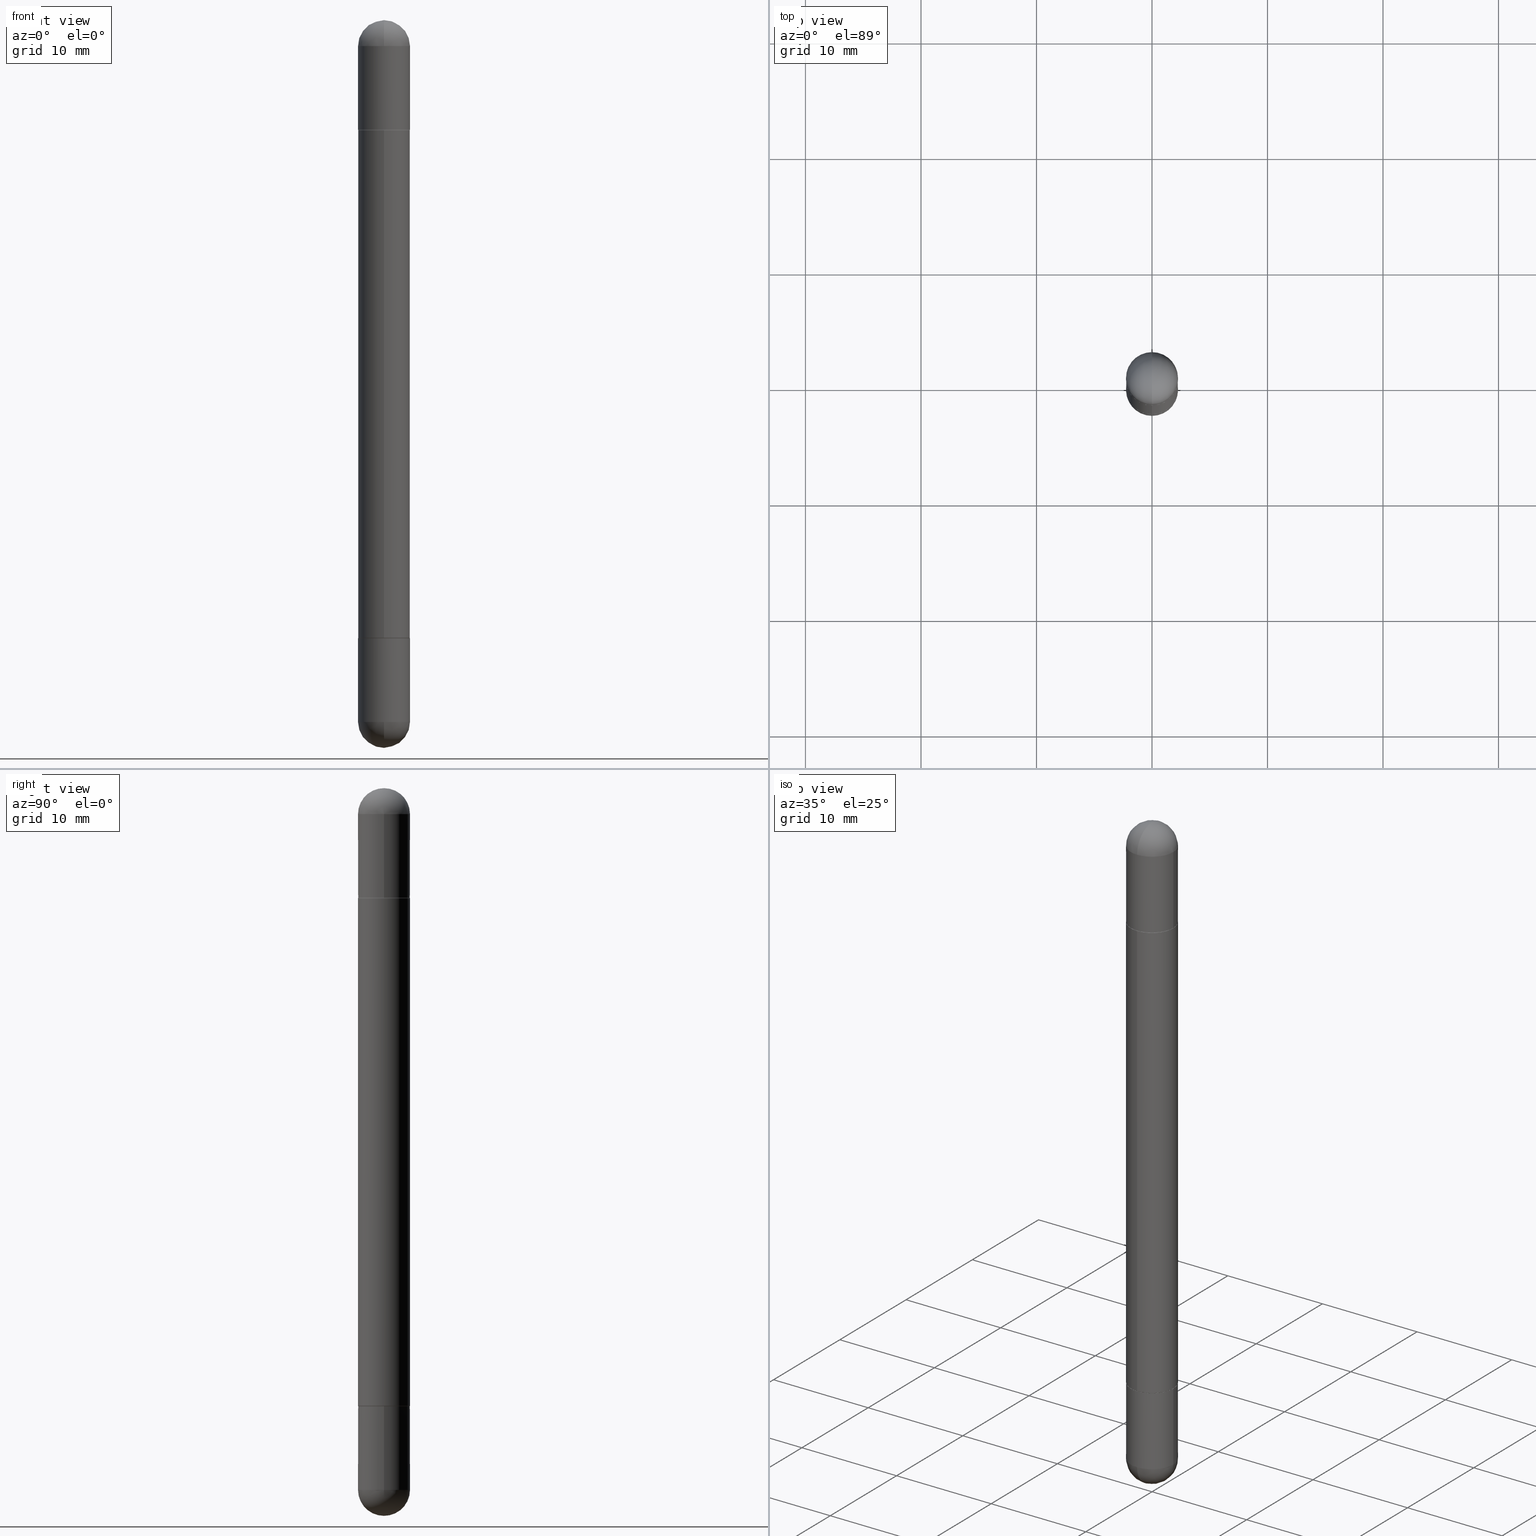
[diagram: canonical four-view strip — front | top / right | iso, engineering-drawing reading convention]
A machine part, canonical four-view strip (front | top / right | iso — engineering-drawing reading convention). The complete STEP part file that produces these views, byte-faithful:
ISO-10303-21;
HEADER;
FILE_DESCRIPTION (( 'STEP AP203' ),
    '1' );
FILE_NAME ('48975.STEP',
    '2024-03-01T12:48:08',
    ( '' ),
    ( '' ),
    'SwSTEP 2.0',
    'SolidWorks 2023',
    '' );
FILE_SCHEMA (( 'CONFIG_CONTROL_DESIGN' ));
ENDSEC;

DATA;
#1 = CARTESIAN_POINT ( 'NONE',  ( 6.044098736037242015E-16, 0.08759999999999262821, -0.3739999999999996105 ) ) ;
#2 = AXIS2_PLACEMENT_3D ( 'NONE', #61, #313, #561 ) ;
#3 = ORIENTED_EDGE ( 'NONE', *, *, #180, .T. ) ;
#4 = CC_DESIGN_APPROVAL ( #393, ( #735 ) ) ;
#5 = CIRCLE ( 'NONE', #542, 0.08759999999999999731 ) ;
#6 = FACE_OUTER_BOUND ( 'NONE', #363, .T. ) ;
#7 = FACE_OUTER_BOUND ( 'NONE', #533, .T. ) ;
#8 = CARTESIAN_POINT ( 'NONE',  ( 0.08859999999999999820, -8.471032024301239972E-15, -2.391700000000000159 ) ) ;
#9 = EDGE_CURVE ( 'NONE', #817, #777, #814, .T. ) ;
#10 = DIRECTION ( 'NONE',  ( 1.000000000000000000, -6.982962677686266711E-15, 0.000000000000000000 ) ) ;
#11 = CARTESIAN_POINT ( 'NONE',  ( 0.000000000000000000, 0.000000000000000000, 0.000000000000000000 ) ) ;
#12 = DIRECTION ( 'NONE',  ( -6.982962677686265922E-15, -1.000000000000000000, -3.854187349977787355E-15 ) ) ;
#13 = EDGE_LOOP ( 'NONE', ( #135, #98, #670, #120 ) ) ;
#14 = CARTESIAN_POINT ( 'NONE',  ( 6.186904932430546233E-16, 0.08859999999999264297, -0.3739999999999996105 ) ) ;
#15 = VECTOR ( 'NONE', #532, 39.37007874015748143 ) ;
#16 = AXIS2_PLACEMENT_3D ( 'NONE', #185, #619, #170 ) ;
#17 = ORIENTED_EDGE ( 'NONE', *, *, #86, .F. ) ;
#18 = CARTESIAN_POINT ( 'NONE',  ( 6.224354365258991183E-16, 0.08759999999999262821, -2.106300000000000505 ) ) ;
#19 = EDGE_CURVE ( 'NONE', #566, #238, #625, .T. ) ;
#20 = CARTESIAN_POINT ( 'NONE',  ( 5.150243839843650118E-29, -7.355033837522057757E-15, -0.3739999999999998881 ) ) ;
#21 = ORIENTED_EDGE ( 'NONE', *, *, #450, .F. ) ;
#22 = ORIENTED_EDGE ( 'NONE', *, *, #96, .T. ) ;
#23 = EDGE_LOOP ( 'NONE', ( #402, #354, #94, #331 ) ) ;
#24 = ORIENTED_EDGE ( 'NONE', *, *, #467, .T. ) ;
#25 = VERTEX_POINT ( 'NONE', #464 ) ;
#26 = ORIENTED_EDGE ( 'NONE', *, *, #508, .F. ) ;
#27 = AXIS2_PLACEMENT_3D ( 'NONE', #440, #696, #67 ) ;
#28 = PRODUCT_DEFINITION_FORMATION_WITH_SPECIFIED_SOURCE ( 'ANY', '', #419, .NOT_KNOWN. ) ;
#29 = DIRECTION ( 'NONE',  ( 6.982962677686265922E-15, 1.000000000000000000, -3.083349879982230831E-15 ) ) ;
#30 = ORIENTED_EDGE ( 'NONE', *, *, #209, .F. ) ;
#31 = AXIS2_PLACEMENT_3D ( 'NONE', #131, #377, #507 ) ;
#32 = DESIGN_CONTEXT ( 'detailed design', #421, 'design' ) ;
#33 = CARTESIAN_POINT ( 'NONE',  ( -0.08859999999999999820, 6.078401226025577455E-16, -2.480300000000000171 ) ) ;
#34 = VERTEX_POINT ( 'NONE', #708 ) ;
#35 = CARTESIAN_POINT ( 'NONE',  ( 5.150890946467754134E-29, -7.354107144005318601E-15, -0.3739999999999998881 ) ) ;
#36 = ORIENTED_EDGE ( 'NONE', *, *, #784, .F. ) ;
#37 = CARTESIAN_POINT ( 'NONE',  ( 6.078401226025891027E-16, 0.08859999999999287890, -2.105300000000001059 ) ) ;
#38 = CALENDAR_DATE ( 2024, 1, 3 ) ;
#39 = EDGE_LOOP ( 'NONE', ( #688, #531, #483, #206 ) ) ;
#40 = CARTESIAN_POINT ( 'NONE',  ( 5.848827743752992709E-29, -8.350575918111152281E-15, -2.391700000000000159 ) ) ;
#41 = PERSON_AND_ORGANIZATION ( #424, #460 ) ;
#42 = AXIS2_PLACEMENT_3D ( 'NONE', #380, #129, #634 ) ;
#43 = ORIENTED_EDGE ( 'NONE', *, *, #548, .F. ) ;
#44 = CIRCLE ( 'NONE', #774, 0.08859999999999999820 ) ;
#45 = CIRCLE ( 'NONE', #509, 0.08859999999999999820 ) ;
#46 = CARTESIAN_POINT ( 'NONE',  ( -6.186904932429535505E-16, -0.08860000000000764486, -0.3750000000000000555 ) ) ;
#47 = CARTESIAN_POINT ( 'NONE',  ( 6.009796246048376066E-16, 0.08759999999999262821, -0.3739999999999996105 ) ) ;
#48 = EDGE_LOOP ( 'NONE', ( #417, #529 ) ) ;
#49 = PERSON_AND_ORGANIZATION_ROLE ( 'creator' ) ;
#50 = FACE_OUTER_BOUND ( 'NONE', #754, .T. ) ;
#51 = DIRECTION ( 'NONE',  ( -6.982962677686265922E-15, -1.000000000000000000, -6.166699759964469551E-15 ) ) ;
#52 = VERTEX_POINT ( 'NONE', #8 ) ;
#53 = PERSON_AND_ORGANIZATION ( #424, #460 ) ;
#54 = LINE ( 'NONE', #189, #812 ) ;
#55 = CARTESIAN_POINT ( 'NONE',  ( 5.150243839843650118E-29, -7.355033837522057757E-15, -0.3739999999999998881 ) ) ;
#56 = DIRECTION ( 'NONE',  ( -2.445161581846673899E-29, 3.491921301581947653E-15, -1.000000000000000000 ) ) ;
#57 = DIRECTION ( 'NONE',  ( -2.445468806185136597E-29, 3.491481338843145583E-15, 1.000000000000000000 ) ) ;
#58 = DIRECTION ( 'NONE',  ( -6.982962677686265133E-15, -1.000000000000000000, -3.118547937972903315E-15 ) ) ;
#59 = APPROVAL_PERSON_ORGANIZATION ( #479, #258, #228 ) ;
#60 = DIRECTION ( 'NONE',  ( -1.000000000000000000, 6.982962677686265922E-15, 4.883557194083112340E-29 ) ) ;
#61 = CARTESIAN_POINT ( 'NONE',  ( 0.000000000000000000, 0.000000000000000000, -2.480300000000000171 ) ) ;
#62 = CARTESIAN_POINT ( 'NONE',  ( 0.08859999999999999820, -7.972797637248321554E-15, -2.106300000000000505 ) ) ;
#63 = VERTEX_POINT ( 'NONE', #214 ) ;
#64 = MECHANICAL_CONTEXT ( 'NONE', #226, 'mechanical' ) ;
#65 = DIRECTION ( 'NONE',  ( -2.445468806185136597E-29, 3.491481338843145583E-15, -1.000000000000000000 ) ) ;
#66 = ORIENTED_EDGE ( 'NONE', *, *, #383, .T. ) ;
#67 = DIRECTION ( 'NONE',  ( 6.982962677686265922E-15, 1.000000000000000000, -3.083349879982230831E-15 ) ) ;
#68 = DIRECTION ( 'NONE',  ( -2.445468806185136597E-29, 3.491481338843145583E-15, -1.000000000000000000 ) ) ;
#69 = AXIS2_PLACEMENT_3D ( 'NONE', #818, #766, #195 ) ;
#70 = ORIENTED_EDGE ( 'NONE', *, *, #567, .T. ) ;
#71 = CIRCLE ( 'NONE', #249, 0.08860000000000022025 ) ;
#72 = VECTOR ( 'NONE', #141, 39.37007874015748143 ) ;
#73 = EDGE_CURVE ( 'NONE', #476, #34, #610, .T. ) ;
#74 = DIRECTION ( 'NONE',  ( 2.445161581846673899E-29, -3.491921301581947653E-15, 1.000000000000000000 ) ) ;
#75 = VERTEX_POINT ( 'NONE', #157 ) ;
#76 = ORIENTED_EDGE ( 'NONE', *, *, #633, .T. ) ;
#77 = DIRECTION ( 'NONE',  ( -2.445161581846673899E-29, 3.491921301581947653E-15, -1.000000000000000000 ) ) ;
#78 = EDGE_CURVE ( 'NONE', #52, #229, #785, .T. ) ;
#79 = CC_DESIGN_DATE_AND_TIME_ASSIGNMENT ( #286, #793, ( #735 ) ) ;
#80 = ADVANCED_FACE ( 'NONE', ( #328 ), #390, .T. ) ;
#81 = ORIENTED_EDGE ( 'NONE', *, *, #19, .F. ) ;
#82 = DIRECTION ( 'NONE',  ( -2.445468806185136877E-29, 3.491481338843145188E-15, 1.000000000000000000 ) ) ;
#83 = PERSON_AND_ORGANIZATION ( #424, #460 ) ;
#84 = ORIENTED_EDGE ( 'NONE', *, *, #499, .T. ) ;
#85 = ADVANCED_FACE ( 'NONE', ( #271 ), #513, .F. ) ;
#86 = EDGE_CURVE ( 'NONE', #566, #807, #400, .T. ) ;
#87 = DIRECTION ( 'NONE',  ( -1.000000000000000000, 0.000000000000000000, 0.000000000000000000 ) ) ;
#88 = CIRCLE ( 'NONE', #722, 0.08859999999999999820 ) ;
#89 = CIRCLE ( 'NONE', #593, 0.08859999999999999820 ) ;
#90 = CIRCLE ( 'NONE', #349, 0.08860000000000022025 ) ;
#91 = DIRECTION ( 'NONE',  ( 1.000000000000000000, -6.982962677686269077E-15, 0.000000000000000000 ) ) ;
#92 = ORIENTED_EDGE ( 'NONE', *, *, #259, .F. ) ;
#93 = FACE_OUTER_BOUND ( 'NONE', #643, .T. ) ;
#94 = ORIENTED_EDGE ( 'NONE', *, *, #233, .T. ) ;
#95 = ORIENTED_EDGE ( 'NONE', *, *, #325, .F. ) ;
#96 = EDGE_CURVE ( 'NONE', #241, #340, #334, .T. ) ;
#97 = DIRECTION ( 'NONE',  ( 2.445161581846673899E-29, -3.491921301581947653E-15, 1.000000000000000000 ) ) ;
#98 = ORIENTED_EDGE ( 'NONE', *, *, #178, .T. ) ;
#99 = ADVANCED_FACE ( 'NONE', ( #519 ), #701, .T. ) ;
#100 = DIRECTION ( 'NONE',  ( 1.000000000000000000, -6.860497997771530774E-15, -4.840798879624142912E-29 ) ) ;
#101 = DIRECTION ( 'NONE',  ( -6.982962677686265133E-15, -1.000000000000000000, -3.118547937972903315E-15 ) ) ;
#102 = AXIS2_PLACEMENT_3D ( 'NONE', #815, #438, #435 ) ;
#103 = CC_DESIGN_APPROVAL ( #258, ( #28 ) ) ;
#104 = LINE ( 'NONE', #215, #295 ) ;
#105 = AXIS2_PLACEMENT_3D ( 'NONE', #564, #494, #134 ) ;
#106 = APPROVAL_DATE_TIME ( #669, #203 ) ;
#107 = ORIENTED_EDGE ( 'NONE', *, *, #456, .T. ) ;
#108 = APPROVAL_STATUS ( 'not_yet_approved' ) ;
#109 = ORIENTED_EDGE ( 'NONE', *, *, #567, .F. ) ;
#110 = CARTESIAN_POINT ( 'NONE',  ( -6.117075305652653668E-16, -0.08760000000000735254, -2.106300000000000061 ) ) ;
#111 = DIRECTION ( 'NONE',  ( -1.000000000000000000, 6.982962677686265922E-15, 4.876176775795935793E-29 ) ) ;
#112 = ORIENTED_EDGE ( 'NONE', *, *, #352, .T. ) ;
#113 = DIRECTION ( 'NONE',  ( -2.445161581846673899E-29, 3.491921301581948047E-15, -1.000000000000000000 ) ) ;
#114 = DIRECTION ( 'NONE',  ( 1.000000000000000000, -6.982962677686269077E-15, 0.000000000000000000 ) ) ;
#115 = EDGE_CURVE ( 'NONE', #798, #807, #583, .T. ) ;
#116 = CIRCLE ( 'NONE', #786, 0.08759999999999999731 ) ;
#117 = DIRECTION ( 'NONE',  ( 4.851104656542080513E-15, 0.7071067811867127739, -0.7071067811863820385 ) ) ;
#118 = DIRECTION ( 'NONE',  ( -6.982962677686265922E-15, -1.000000000000000000, 3.491921301581948047E-15 ) ) ;
#119 = MANIFOLD_SOLID_BREP ( 'Mirror4[1]', #136 ) ;
#120 = ORIENTED_EDGE ( 'NONE', *, *, #236, .F. ) ;
#121 = DATE_AND_TIME ( #427, #159 ) ;
#122 = AXIS2_PLACEMENT_3D ( 'NONE', #386, #60, #365 ) ;
#123 = ORIENTED_EDGE ( 'NONE', *, *, #692, .T. ) ;
#124 = ORIENTED_EDGE ( 'NONE', *, *, #399, .F. ) ;
#125 = DIRECTION ( 'NONE',  ( -2.445468806185136597E-29, 3.491481338843145583E-15, 1.000000000000000000 ) ) ;
#126 = DIRECTION ( 'NONE',  ( -2.445468806185136877E-29, 3.491481338843145188E-15, -1.000000000000000000 ) ) ;
#127 = CYLINDRICAL_SURFACE ( 'NONE', #382, 0.08859999999999999820 ) ;
#128 = DIRECTION ( 'NONE',  ( 6.982962677686265922E-15, 1.000000000000000000, 3.468768614980009882E-15 ) ) ;
#129 = DIRECTION ( 'NONE',  ( -2.445468806185136597E-29, 3.491481338843145583E-15, 1.000000000000000000 ) ) ;
#130 = LINE ( 'NONE', #690, #607 ) ;
#131 = CARTESIAN_POINT ( 'NONE',  ( 5.147798678261803388E-29, -7.351541916220477463E-15, -0.3749999999999996669 ) ) ;
#132 = DIRECTION ( 'NONE',  ( 1.000000000000000000, -6.982962677686269077E-15, 0.000000000000000000 ) ) ;
#133 = VECTOR ( 'NONE', #760, 39.37007874015748854 ) ;
#134 = DIRECTION ( 'NONE',  ( -6.982962677686265922E-15, -1.000000000000000000, 3.083349879982229648E-15 ) ) ;
#135 = ORIENTED_EDGE ( 'NONE', *, *, #115, .F. ) ;
#136 = CLOSED_SHELL ( 'NONE', ( #758, #408, #270, #511, #142, #260 ) ) ;
#137 = DIRECTION ( 'NONE',  ( 1.000000000000000000, -6.982962677686269077E-15, 0.000000000000000000 ) ) ;
#138 = DIRECTION ( 'NONE',  ( 1.000000000000000000, -6.982962677686269077E-15, 0.000000000000000000 ) ) ;
#139 = EDGE_CURVE ( 'NONE', #229, #230, #710, .T. ) ;
#140 = EDGE_LOOP ( 'NONE', ( #560, #285 ) ) ;
#141 = DIRECTION ( 'NONE',  ( -2.445468806185136877E-29, 3.491481338843145188E-15, -1.000000000000000000 ) ) ;
#142 = ADVANCED_FACE ( 'NONE', ( #485 ), #582, .T. ) ;
#143 = DIRECTION ( 'NONE',  ( 1.000000000000000000, -6.982962677686266711E-15, 0.000000000000000000 ) ) ;
#144 = CIRCLE ( 'NONE', #496, 0.08859999999999999820 ) ;
#145 = ORIENTED_EDGE ( 'NONE', *, *, #743, .F. ) ;
#146 =( NAMED_UNIT ( * ) PLANE_ANGLE_UNIT ( ) SI_UNIT ( $, .RADIAN. ) );
#147 = AXIS2_PLACEMENT_3D ( 'NONE', #164, #261, #569 ) ;
#148 = AXIS2_PLACEMENT_3D ( 'NONE', #658, #575, #715 ) ;
#149 = CIRCLE ( 'NONE', #207, 0.08859999999999999820 ) ;
#150 = PLANE ( 'NONE',  #294 ) ;
#151 = ORIENTED_EDGE ( 'NONE', *, *, #247, .F. ) ;
#152 = DIRECTION ( 'NONE',  ( 2.438088387897960049E-29, -3.491481338843145188E-15, -1.000000000000000000 ) ) ;
#153 = ADVANCED_FACE ( 'NONE', ( #169 ), #422, .F. ) ;
#154 = DIRECTION ( 'NONE',  ( -6.982962677686265133E-15, -1.000000000000000000, 3.118547937972903315E-15 ) ) ;
#155 = CARTESIAN_POINT ( 'NONE',  ( -6.186904932429535505E-16, -0.08860000000000764486, -0.3750000000000000555 ) ) ;
#156 = EDGE_LOOP ( 'NONE', ( #680, #573, #210, #213, #109 ) ) ;
#157 = CARTESIAN_POINT ( 'NONE',  ( 0.08859999999999999820, -7.972797637248321554E-15, -0.3739999999999998881 ) ) ;
#158 = AXIS2_PLACEMENT_3D ( 'NONE', #640, #74, #322 ) ;
#159 = LOCAL_TIME ( 7, 48, 8.000000000000000000, #796 ) ;
#160 = CIRCLE ( 'NONE', #556, 0.08859999999999999820 ) ;
#161 = CARTESIAN_POINT ( 'NONE',  ( 5.848827743752992709E-29, -8.350575918111152281E-15, -0.08859999999999998432 ) ) ;
#162 = VERTEX_POINT ( 'NONE', #343 ) ;
#163 = EDGE_CURVE ( 'NONE', #476, #493, #90, .T. ) ;
#164 = CARTESIAN_POINT ( 'NONE',  ( 0.000000000000000000, 0.000000000000000000, -2.480300000000000171 ) ) ;
#165 = EDGE_CURVE ( 'NONE', #34, #52, #570, .T. ) ;
#166 = CARTESIAN_POINT ( 'NONE',  ( 5.848827743752992709E-29, -8.350575918111152281E-15, -2.391700000000000159 ) ) ;
#167 = ORIENTED_EDGE ( 'NONE', *, *, #259, .T. ) ;
#168 = DIRECTION ( 'NONE',  ( 1.000000000000000000, -6.982962677686269077E-15, 0.000000000000000000 ) ) ;
#169 = FACE_OUTER_BOUND ( 'NONE', #291, .T. ) ;
#170 = DIRECTION ( 'NONE',  ( -6.982962677686265133E-15, -1.000000000000000000, 3.118547937972903315E-15 ) ) ;
#171 = COORDINATED_UNIVERSAL_TIME_OFFSET ( 5, 0, .BEHIND. ) ;
#172 = CIRCLE ( 'NONE', #221, 0.08860000000000024800 ) ;
#173 = ORIENTED_EDGE ( 'NONE', *, *, #782, .T. ) ;
#174 = CARTESIAN_POINT ( 'NONE',  ( 5.150890946467754134E-29, -7.354107144005318601E-15, -0.3739999999999998881 ) ) ;
#175 = ORIENTED_EDGE ( 'NONE', *, *, #78, .F. ) ;
#176 = CALENDAR_DATE ( 2024, 1, 3 ) ;
#177 = ADVANCED_FACE ( 'NONE', ( #684 ), #434, .T. ) ;
#178 = EDGE_CURVE ( 'NONE', #798, #665, #5, .T. ) ;
#179 = VERTEX_POINT ( 'NONE', #451 ) ;
#180 = EDGE_CURVE ( 'NONE', #25, #340, #198, .T. ) ;
#181 = DIRECTION ( 'NONE',  ( -2.445161581846673339E-29, 3.491921301581948047E-15, -1.000000000000000000 ) ) ;
#182 =( CONVERSION_BASED_UNIT ( 'INCH', #691 ) LENGTH_UNIT ( ) NAMED_UNIT ( #803 ) );
#183 = EDGE_LOOP ( 'NONE', ( #544, #112, #595, #592 ) ) ;
#184 = DIRECTION ( 'NONE',  ( -4.937700262165684002E-15, -0.7071067811867078889, -0.7071067811863869235 ) ) ;
#185 = CARTESIAN_POINT ( 'NONE',  ( 5.150243839843650118E-29, -7.355033837522057757E-15, -2.106300000000000505 ) ) ;
#186 = AXIS2_PLACEMENT_3D ( 'NONE', #650, #475, #781 ) ;
#187 = AXIS2_PLACEMENT_3D ( 'NONE', #396, #345, #652 ) ;
#188 = ORIENTED_EDGE ( 'NONE', *, *, #247, .T. ) ;
#189 = CARTESIAN_POINT ( 'NONE',  ( 6.078401226025584357E-16, 0.08860000000000010922, -2.480299999999999727 ) ) ;
#190 = DIRECTION ( 'NONE',  ( 0.000000000000000000, 0.000000000000000000, 1.000000000000000000 ) ) ;
#191 = FACE_OUTER_BOUND ( 'NONE', #586, .T. ) ;
#192 = CARTESIAN_POINT ( 'NONE',  ( 5.150243839843650118E-29, -7.355033837522057757E-15, -0.3739999999999998881 ) ) ;
#193 = SPHERICAL_SURFACE ( 'NONE', #27, 0.08860000000000022025 ) ;
#194 = CARTESIAN_POINT ( 'NONE',  ( 5.150243839843650118E-29, -7.355033837522057757E-15, -0.3739999999999998881 ) ) ;
#195 = DIRECTION ( 'NONE',  ( 6.860497997771530774E-15, 1.000000000000000000, 0.000000000000000000 ) ) ;
#196 = AXIS2_PLACEMENT_3D ( 'NONE', #296, #806, #243 ) ;
#197 = CALENDAR_DATE ( 2024, 1, 3 ) ;
#198 = CIRCLE ( 'NONE', #655, 0.08859999999999999820 ) ;
#199 = CARTESIAN_POINT ( 'NONE',  ( 0.000000000000000000, 0.000000000000000000, -2.480300000000000171 ) ) ;
#200 = ADVANCED_FACE ( 'NONE', ( #678 ), #412, .T. ) ;
#201 = ORIENTED_EDGE ( 'NONE', *, *, #467, .F. ) ;
#202 = ORIENTED_EDGE ( 'NONE', *, *, #490, .T. ) ;
#203 = APPROVAL ( #587, 'UNSPECIFIED' ) ;
#204 = CARTESIAN_POINT ( 'NONE',  ( 5.147798678261803388E-29, -7.351541916220477463E-15, -0.3749999999999996669 ) ) ;
#205 = CYLINDRICAL_SURFACE ( 'NONE', #2, 0.08860000000000010922 ) ;
#206 = ORIENTED_EDGE ( 'NONE', *, *, #450, .T. ) ;
#207 = AXIS2_PLACEMENT_3D ( 'NONE', #267, #703, #132 ) ;
#208 =( GEOMETRIC_REPRESENTATION_CONTEXT ( 3 ) GLOBAL_UNCERTAINTY_ASSIGNED_CONTEXT ( ( #337 ) ) GLOBAL_UNIT_ASSIGNED_CONTEXT ( ( #182, #146, #632 ) ) REPRESENTATION_CONTEXT ( 'NONE', 'WORKASPACE' ) );
#209 = EDGE_CURVE ( 'NONE', #269, #75, #45, .T. ) ;
#210 = ORIENTED_EDGE ( 'NONE', *, *, #165, .T. ) ;
#211 = ORIENTED_EDGE ( 'NONE', *, *, #490, .F. ) ;
#212 = DIRECTION ( 'NONE',  ( -6.982962677686265133E-15, -1.000000000000000000, 3.118547937972903315E-15 ) ) ;
#213 = ORIENTED_EDGE ( 'NONE', *, *, #78, .T. ) ;
#214 = CARTESIAN_POINT ( 'NONE',  ( 5.738164888728174729E-29, -9.128678347552484260E-15, 2.390366994456230070E-16 ) ) ;
#215 = CARTESIAN_POINT ( 'NONE',  ( -6.186904932430039390E-16, -0.08860000000000010922, -2.480300000000001059 ) ) ;
#216 = EDGE_CURVE ( 'NONE', #549, #682, #442, .T. ) ;
#217 = DIRECTION ( 'NONE',  ( -2.445161581846673899E-29, 3.491921301581947653E-15, -1.000000000000000000 ) ) ;
#218 = ORIENTED_EDGE ( 'NONE', *, *, #236, .T. ) ;
#219 = VERTEX_POINT ( 'NONE', #1 ) ;
#220 = DIRECTION ( 'NONE',  ( 1.000000000000000000, -6.982962677686269077E-15, 0.000000000000000000 ) ) ;
#221 = AXIS2_PLACEMENT_3D ( 'NONE', #776, #577, #12 ) ;
#222 = LOCAL_TIME ( 7, 48, 8.000000000000000000, #738 ) ;
#223 = CLOSED_SHELL ( 'NONE', ( #272, #808, #659, #85, #200 ) ) ;
#224 = EDGE_LOOP ( 'NONE', ( #585, #211, #657, #484 ) ) ;
#225 = ADVANCED_FACE ( 'NONE', ( #546 ), #698, .F. ) ;
#226 = APPLICATION_CONTEXT ( 'configuration controlled 3d designs of mechanical parts and assemblies' ) ;
#227 = ORIENTED_EDGE ( 'NONE', *, *, #646, .T. ) ;
#228 = APPROVAL_ROLE ( '' ) ;
#229 = VERTEX_POINT ( 'NONE', #62 ) ;
#230 = VERTEX_POINT ( 'NONE', #751 ) ;
#231 = CARTESIAN_POINT ( 'NONE',  ( -6.186904932429534519E-16, -0.08860000000000761711, -2.105300000000000171 ) ) ;
#232 = DIRECTION ( 'NONE',  ( 2.438088387897960049E-29, -3.491481338843145188E-15, 1.000000000000000000 ) ) ;
#233 = EDGE_CURVE ( 'NONE', #179, #682, #759, .T. ) ;
#234 = CARTESIAN_POINT ( 'NONE',  ( 5.517707965839106462E-29, -8.824758286251204155E-15, -0.08859999999999998432 ) ) ;
#235 = AXIS2_PLACEMENT_3D ( 'NONE', #194, #256, #500 ) ;
#236 = EDGE_CURVE ( 'NONE', #807, #336, #462, .T. ) ;
#237 = CC_DESIGN_SECURITY_CLASSIFICATION ( #580, ( #28 ) ) ;
#238 = VERTEX_POINT ( 'NONE', #46 ) ;
#239 = ORIENTED_EDGE ( 'NONE', *, *, #548, .T. ) ;
#240 = CARTESIAN_POINT ( 'NONE',  ( 5.150890946467754134E-29, -7.354107144005318601E-15, -0.3739999999999998881 ) ) ;
#241 = VERTEX_POINT ( 'NONE', #802 ) ;
#242 = LINE ( 'NONE', #110, #709 ) ;
#243 = DIRECTION ( 'NONE',  ( 1.000000000000000000, -6.982962677686269077E-15, 0.000000000000000000 ) ) ;
#244 = EDGE_LOOP ( 'NONE', ( #699, #647, #21, #525, #66 ) ) ;
#245 = DIRECTION ( 'NONE',  ( 1.000000000000000000, -6.982962677686266711E-15, 4.876176775795935232E-29 ) ) ;
#246 = CARTESIAN_POINT ( 'NONE',  ( 0.000000000000000000, 0.000000000000000000, -1.240150000000000086 ) ) ;
#247 = EDGE_CURVE ( 'NONE', #493, #289, #160, .T. ) ;
#248 = CIRCLE ( 'NONE', #196, 0.08859999999999999820 ) ;
#249 = AXIS2_PLACEMENT_3D ( 'NONE', #268, #649, #449 ) ;
#250 = VECTOR ( 'NONE', #82, 39.37007874015748143 ) ;
#251 = AXIS2_PLACEMENT_3D ( 'NONE', #454, #565, #631 ) ;
#252 = DIRECTION ( 'NONE',  ( 6.982962677686265922E-15, 1.000000000000000000, 3.468768614980009882E-15 ) ) ;
#253 = CARTESIAN_POINT ( 'NONE',  ( -0.08859999999999999820, -7.222800667174788168E-15, -2.391700000000000159 ) ) ;
#254 = CARTESIAN_POINT ( 'NONE',  ( 6.044098736037242015E-16, 0.08759999999999262821, -0.3739999999999996105 ) ) ;
#255 = CYLINDRICAL_SURFACE ( 'NONE', #413, 0.08859999999999999820 ) ;
#256 = DIRECTION ( 'NONE',  ( -2.445161581846673339E-29, 3.491921301581948047E-15, -1.000000000000000000 ) ) ;
#257 = ORIENTED_EDGE ( 'NONE', *, *, #502, .T. ) ;
#258 = APPROVAL ( #679, 'UNSPECIFIED' ) ;
#259 = EDGE_CURVE ( 'NONE', #63, #789, #474, .T. ) ;
#260 = ADVANCED_FACE ( 'NONE', ( #813 ), #614, .T. ) ;
#261 = DIRECTION ( 'NONE',  ( -2.445161581846673899E-29, 3.491921301581947653E-15, -1.000000000000000000 ) ) ;
#262 = CONICAL_SURFACE ( 'NONE', #16, 0.08759999999999999731, 0.7853981633976787613 ) ;
#263 = AXIS2_PLACEMENT_3D ( 'NONE', #166, #787, #410 ) ;
#264 = EDGE_LOOP ( 'NONE', ( #461, #292, #411, #737 ) ) ;
#265 = DIRECTION ( 'NONE',  ( -2.445161581846673899E-29, 3.491921301581947653E-15, 1.000000000000000000 ) ) ;
#266 = CARTESIAN_POINT ( 'NONE',  ( 5.150243839843650118E-29, -7.355033837522057757E-15, -0.3739999999999998881 ) ) ;
#267 = CARTESIAN_POINT ( 'NONE',  ( 5.848827743752992709E-29, -8.350575918111152281E-15, -0.08859999999999998432 ) ) ;
#268 = CARTESIAN_POINT ( 'NONE',  ( 5.517707965839106462E-29, -8.824758286251204155E-15, -0.08859999999999998432 ) ) ;
#269 = VERTEX_POINT ( 'NONE', #559 ) ;
#270 = ADVANCED_FACE ( 'NONE', ( #551 ), #810, .F. ) ;
#271 = FACE_OUTER_BOUND ( 'NONE', #597, .T. ) ;
#272 = ADVANCED_FACE ( 'NONE', ( #305 ), #127, .T. ) ;
#273 = CARTESIAN_POINT ( 'NONE',  ( -6.186904932429630168E-16, -0.08860000000000445297, -1.240150000000000086 ) ) ;
#274 = CARTESIAN_POINT ( 'NONE',  ( 5.517707965839106462E-29, -8.824758286251204155E-15, -2.391700000000000159 ) ) ;
#275 = ORIENTED_EDGE ( 'NONE', *, *, #86, .T. ) ;
#276 = AXIS2_PLACEMENT_3D ( 'NONE', #622, #809, #245 ) ;
#277 = DIRECTION ( 'NONE',  ( 6.860497997771530774E-15, 1.000000000000000000, 0.000000000000000000 ) ) ;
#278 = DIRECTION ( 'NONE',  ( -6.982962677686265922E-15, -1.000000000000000000, -3.854187349977787355E-15 ) ) ;
#279 = VECTOR ( 'NONE', #184, 39.37007874015748854 ) ;
#280 = ORIENTED_EDGE ( 'NONE', *, *, #633, .F. ) ;
#281 = DIRECTION ( 'NONE',  ( 1.000000000000000000, -6.982962677686269077E-15, 0.000000000000000000 ) ) ;
#282 = ORIENTED_EDGE ( 'NONE', *, *, #139, .F. ) ;
#283 = CIRCLE ( 'NONE', #187, 0.08859999999999999820 ) ;
#284 = CIRCLE ( 'NONE', #639, 0.08859999999999999820 ) ;
#285 = ORIENTED_EDGE ( 'NONE', *, *, #178, .F. ) ;
#286 = DATE_AND_TIME ( #176, #431 ) ;
#287 = ORIENTED_EDGE ( 'NONE', *, *, #165, .F. ) ;
#288 = DIRECTION ( 'NONE',  ( 2.445468806185136597E-29, -3.491481338843145583E-15, 1.000000000000000000 ) ) ;
#289 = VERTEX_POINT ( 'NONE', #253 ) ;
#290 = DATE_AND_TIME ( #38, #222 ) ;
#291 = EDGE_LOOP ( 'NONE', ( #539, #455 ) ) ;
#292 = ORIENTED_EDGE ( 'NONE', *, *, #637, .F. ) ;
#293 = APPROVAL_DATE_TIME ( #290, #393 ) ;
#294 = AXIS2_PLACEMENT_3D ( 'NONE', #514, #152, #314 ) ;
#295 = VECTOR ( 'NONE', #780, 39.37007874015748143 ) ;
#296 = CARTESIAN_POINT ( 'NONE',  ( 5.848827743752992709E-29, -8.350575918111152281E-15, -0.08859999999999998432 ) ) ;
#297 = CLOSED_SHELL ( 'NONE', ( #99, #627, #80, #225, #706, #409, #805, #553 ) ) ;
#298 = ORIENTED_EDGE ( 'NONE', *, *, #350, .F. ) ;
#299 = DIRECTION ( 'NONE',  ( 2.445468806185136597E-29, -3.491481338843145583E-15, 1.000000000000000000 ) ) ;
#300 = VERTEX_POINT ( 'NONE', #501 ) ;
#301 = DIRECTION ( 'NONE',  ( -2.445161581846673899E-29, 3.491921301581948047E-15, -1.000000000000000000 ) ) ;
#302 = CARTESIAN_POINT ( 'NONE',  ( 6.078401226026096131E-16, 0.08859999999999577935, -1.240150000000000086 ) ) ;
#303 = EDGE_CURVE ( 'NONE', #420, #549, #414, .T. ) ;
#304 = ADVANCED_FACE ( 'NONE', ( #7 ), #150, .F. ) ;
#305 = FACE_OUTER_BOUND ( 'NONE', #338, .T. ) ;
#306 = CIRCLE ( 'NONE', #398, 0.08860000000000024800 ) ;
#307 = DIRECTION ( 'NONE',  ( -1.000000000000000000, 0.000000000000000000, 0.000000000000000000 ) ) ;
#308 = AXIS2_PLACEMENT_3D ( 'NONE', #20, #217, #470 ) ;
#309 = AXIS2_PLACEMENT_3D ( 'NONE', #246, #190, #436 ) ;
#310 = DIRECTION ( 'NONE',  ( 1.000000000000000000, -6.982962677686269077E-15, 0.000000000000000000 ) ) ;
#311 = CARTESIAN_POINT ( 'NONE',  ( 5.848827743752992709E-29, -8.350575918111152281E-15, -2.391700000000000159 ) ) ;
#312 = DIRECTION ( 'NONE',  ( 6.982962677686265922E-15, 1.000000000000000000, 3.468768614980009882E-15 ) ) ;
#313 = DIRECTION ( 'NONE',  ( -2.445161581846673899E-29, 3.491921301581947653E-15, -1.000000000000000000 ) ) ;
#314 = DIRECTION ( 'NONE',  ( -1.000000000000000000, 6.982962677686265922E-15, -4.876176775795935793E-29 ) ) ;
#315 = SECURITY_CLASSIFICATION_LEVEL ( 'unclassified' ) ;
#316 = CARTESIAN_POINT ( 'NONE',  ( 0.000000000000000000, 0.000000000000000000, 0.000000000000000000 ) ) ;
#317 = ORIENTED_EDGE ( 'NONE', *, *, #399, .T. ) ;
#318 = CARTESIAN_POINT ( 'NONE',  ( -0.08859999999999999820, -7.244501408455678386E-15, -0.08859999999999998432 ) ) ;
#319 = CC_DESIGN_PERSON_AND_ORGANIZATION_ASSIGNMENT ( #621, #384, ( #580 ) ) ;
#320 = CIRCLE ( 'NONE', #378, 0.08860000000000010922 ) ;
#321 = AXIS2_PLACEMENT_3D ( 'NONE', #316, #125, #689 ) ;
#322 = DIRECTION ( 'NONE',  ( -6.982962677686265922E-15, -1.000000000000000000, -3.854187349977787355E-15 ) ) ;
#323 = VERTEX_POINT ( 'NONE', #341 ) ;
#324 = ORIENTED_EDGE ( 'NONE', *, *, #163, .T. ) ;
#325 = EDGE_CURVE ( 'NONE', #617, #25, #407, .T. ) ;
#326 = CARTESIAN_POINT ( 'NONE',  ( 5.150890946467754134E-29, -7.354107144005318601E-15, -0.3739999999999998881 ) ) ;
#327 = ORIENTED_EDGE ( 'NONE', *, *, #73, .T. ) ;
#328 = FACE_OUTER_BOUND ( 'NONE', #183, .T. ) ;
#329 = DIRECTION ( 'NONE',  ( 2.445468806185136597E-29, -3.491481338843145583E-15, 1.000000000000000000 ) ) ;
#330 = FACE_OUTER_BOUND ( 'NONE', #521, .T. ) ;
#331 = ORIENTED_EDGE ( 'NONE', *, *, #216, .F. ) ;
#332 = CIRCLE ( 'NONE', #42, 0.08859999999999999820 ) ;
#333 = CARTESIAN_POINT ( 'NONE',  ( -6.117075305652653668E-16, -0.08760000000000735254, -0.3740000000000001656 ) ) ;
#334 = LINE ( 'NONE', #644, #72 ) ;
#335 = CLOSED_SHELL ( 'NONE', ( #589, #463, #366, #153, #600 ) ) ;
#336 = VERTEX_POINT ( 'NONE', #231 ) ;
#337 = UNCERTAINTY_MEASURE_WITH_UNIT (LENGTH_MEASURE( 1.000000000000000082E-05 ), #182, 'distance_accuracy_value', 'NONE');
#338 = EDGE_LOOP ( 'NONE', ( #368, #227, #465, #26, #654 ) ) ;
#339 = EDGE_CURVE ( 'NONE', #665, #336, #242, .T. ) ;
#340 = VERTEX_POINT ( 'NONE', #662 ) ;
#341 = CARTESIAN_POINT ( 'NONE',  ( 5.738164888728174729E-29, -9.128678347552484260E-15, 2.390366994456230070E-16 ) ) ;
#342 = CARTESIAN_POINT ( 'NONE',  ( 3.032367135727152857E-29, -4.330506202156853128E-15, -1.240150000000000086 ) ) ;
#343 = CARTESIAN_POINT ( 'NONE',  ( -6.078401226025015392E-16, -0.08860000000000868570, -0.08860000000000028963 ) ) ;
#344 = CC_DESIGN_PERSON_AND_ORGANIZATION_ASSIGNMENT ( #53, #375, ( #28 ) ) ;
#345 = DIRECTION ( 'NONE',  ( 2.445468806185136597E-29, -3.491481338843145583E-15, 1.000000000000000000 ) ) ;
#346 = ORIENTED_EDGE ( 'NONE', *, *, #325, .T. ) ;
#347 = AXIS2_PLACEMENT_3D ( 'NONE', #702, #373, #312 ) ;
#348 = CIRCLE ( 'NONE', #609, 0.08859999999999999820 ) ;
#349 = AXIS2_PLACEMENT_3D ( 'NONE', #418, #355, #602 ) ;
#350 = EDGE_CURVE ( 'NONE', #777, #817, #320, .T. ) ;
#351 = VERTEX_POINT ( 'NONE', #681 ) ;
#352 = EDGE_CURVE ( 'NONE', #219, #566, #437, .T. ) ;
#353 = EDGE_LOOP ( 'NONE', ( #202, #257 ) ) ;
#354 = ORIENTED_EDGE ( 'NONE', *, *, #391, .T. ) ;
#355 = DIRECTION ( 'NONE',  ( 1.000000000000000000, -6.982962677686265922E-15, 4.883557194083112340E-29 ) ) ;
#356 = EDGE_LOOP ( 'NONE', ( #17, #489, #24, #239 ) ) ;
#357 = CARTESIAN_POINT ( 'NONE',  ( 5.738164888728174729E-29, -9.128678347552484260E-15, -2.480300000000000171 ) ) ;
#358 = CARTESIAN_POINT ( 'NONE',  ( -6.117075305652653668E-16, -0.08760000000000735254, -0.3740000000000001656 ) ) ;
#359 = CC_DESIGN_APPROVAL ( #203, ( #580 ) ) ;
#360 = DIRECTION ( 'NONE',  ( -2.445468806185136877E-29, 3.491481338843145188E-15, 1.000000000000000000 ) ) ;
#361 = AXIS2_PLACEMENT_3D ( 'NONE', #664, #232, #111 ) ;
#362 = CARTESIAN_POINT ( 'NONE',  ( 6.078401226026106978E-16, 0.08859999999999286502, -0.3749999999999993339 ) ) ;
#363 = EDGE_LOOP ( 'NONE', ( #95, #601, #517, #22, #799 ) ) ;
#364 = APPROVAL_DATE_TIME ( #121, #258 ) ;
#365 = DIRECTION ( 'NONE',  ( -6.982962677686265133E-15, -1.000000000000000000, 0.000000000000000000 ) ) ;
#366 = ADVANCED_FACE ( 'NONE', ( #367 ), #611, .T. ) ;
#367 = FACE_OUTER_BOUND ( 'NONE', #395, .T. ) ;
#368 = ORIENTED_EDGE ( 'NONE', *, *, #782, .F. ) ;
#369 = FACE_OUTER_BOUND ( 'NONE', #48, .T. ) ;
#370 = DIRECTION ( 'NONE',  ( -2.445468806185136597E-29, 3.491481338843145583E-15, -1.000000000000000000 ) ) ;
#371 = CC_DESIGN_PERSON_AND_ORGANIZATION_ASSIGNMENT ( #530, #538, ( #735 ) ) ;
#372 = CARTESIAN_POINT ( 'NONE',  ( 5.848827743752992709E-29, -8.350575918111152281E-15, -0.08859999999999998432 ) ) ;
#373 = DIRECTION ( 'NONE',  ( 1.000000000000000000, -6.982962677686265922E-15, -4.883557194083112901E-29 ) ) ;
#374 = FACE_OUTER_BOUND ( 'NONE', #392, .T. ) ;
#375 = PERSON_AND_ORGANIZATION_ROLE ( 'design_supplier' ) ;
#376 = SPHERICAL_SURFACE ( 'NONE', #767, 0.08860000000000022025 ) ;
#377 = DIRECTION ( 'NONE',  ( 2.445161581846673899E-29, -3.491921301581947653E-15, 1.000000000000000000 ) ) ;
#378 = AXIS2_PLACEMENT_3D ( 'NONE', #342, #666, #307 ) ;
#379 = MANIFOLD_SOLID_BREP ( 'Body-Move/Copy2[1]', #686 ) ;
#380 = CARTESIAN_POINT ( 'NONE',  ( 5.150890946467754134E-29, -7.354107144005318601E-15, -2.106300000000000505 ) ) ;
#381 = VECTOR ( 'NONE', #752, 39.37007874015748854 ) ;
#382 = AXIS2_PLACEMENT_3D ( 'NONE', #762, #370, #554 ) ;
#383 = EDGE_CURVE ( 'NONE', #75, #269, #88, .T. ) ;
#384 = PERSON_AND_ORGANIZATION_ROLE ( 'classification_officer' ) ;
#385 = CYLINDRICAL_SURFACE ( 'NONE', #276, 0.08859999999999999820 ) ;
#386 = CARTESIAN_POINT ( 'NONE',  ( 5.517707965839106462E-29, -8.824758286251204155E-15, -0.08859999999999998432 ) ) ;
#387 = CARTESIAN_POINT ( 'NONE',  ( 6.078401226025584357E-16, 0.08860000000000010922, -2.480299999999999727 ) ) ;
#388 = VECTOR ( 'NONE', #301, 39.37007874015748143 ) ;
#389 = DATE_AND_TIME ( #197, #768 ) ;
#390 = CONICAL_SURFACE ( 'NONE', #401, 0.08759999999999999731, 0.7853981633976787613 ) ;
#391 = EDGE_CURVE ( 'NONE', #420, #179, #630, .T. ) ;
#392 = EDGE_LOOP ( 'NONE', ( #124, #346, #3, #397, #526 ) ) ;
#393 = APPROVAL ( #108, 'UNSPECIFIED' ) ;
#394 = DIRECTION ( 'NONE',  ( -2.445468806185136877E-29, 3.491481338843145188E-15, -1.000000000000000000 ) ) ;
#395 = EDGE_LOOP ( 'NONE', ( #280, #167, #84, #317 ) ) ;
#396 = CARTESIAN_POINT ( 'NONE',  ( 5.848827743752992709E-29, -8.350575918111152281E-15, -0.08859999999999998432 ) ) ;
#397 = ORIENTED_EDGE ( 'NONE', *, *, #96, .F. ) ;
#398 = AXIS2_PLACEMENT_3D ( 'NONE', #505, #761, #441 ) ;
#399 = EDGE_CURVE ( 'NONE', #617, #162, #248, .T. ) ;
#400 = LINE ( 'NONE', #387, #518 ) ;
#401 = AXIS2_PLACEMENT_3D ( 'NONE', #266, #77, #469 ) ;
#402 = ORIENTED_EDGE ( 'NONE', *, *, #303, .F. ) ;
#403 = CC_DESIGN_PERSON_AND_ORGANIZATION_ASSIGNMENT ( #613, #49, ( #28 ) ) ;
#404 = DIRECTION ( 'NONE',  ( -4.937700262165684002E-15, -0.7071067811867078889, 0.7071067811863869235 ) ) ;
#405 = ORIENTED_EDGE ( 'NONE', *, *, #763, .T. ) ;
#406 = DIRECTION ( 'NONE',  ( -6.982962677686265133E-15, -1.000000000000000000, -3.118547937972903315E-15 ) ) ;
#407 = LINE ( 'NONE', #33, #15 ) ;
#408 = ADVANCED_FACE ( 'NONE', ( #616 ), #668, .T. ) ;
#409 = ADVANCED_FACE ( 'NONE', ( #687 ), #557, .T. ) ;
#410 = DIRECTION ( 'NONE',  ( 1.000000000000000000, -6.982962677686269077E-15, 0.000000000000000000 ) ) ;
#411 = ORIENTED_EDGE ( 'NONE', *, *, #743, .T. ) ;
#412 = CYLINDRICAL_SURFACE ( 'NONE', #675, 0.08859999999999999820 ) ;
#413 = AXIS2_PLACEMENT_3D ( 'NONE', #771, #68, #10 ) ;
#414 = CIRCLE ( 'NONE', #591, 0.08759999999999999731 ) ;
#415 = ORIENTED_EDGE ( 'NONE', *, *, #615, .T. ) ;
#416 = DIRECTION ( 'NONE',  ( -2.445468806185136597E-29, 3.491481338843145583E-15, -1.000000000000000000 ) ) ;
#417 = ORIENTED_EDGE ( 'NONE', *, *, #428, .T. ) ;
#418 = CARTESIAN_POINT ( 'NONE',  ( 5.517707965839106462E-29, -8.824758286251204155E-15, -2.391700000000000159 ) ) ;
#419 = PRODUCT ( '48975', '48975', '', ( #64 ) ) ;
#420 = VERTEX_POINT ( 'NONE', #254 ) ;
#421 = APPLICATION_CONTEXT ( 'configuration controlled 3d designs of mechanical parts and assemblies' ) ;
#422 = PLANE ( 'NONE',  #361 ) ;
#423 = LINE ( 'NONE', #764, #388 ) ;
#424 = PERSON ( 'UNSPECIFIED', 'UNSPECIFIED', 'UNSPECIFIED', ('UNSPECIFIED'), ('UNSPECIFIED'), ('UNSPECIFIED') ) ;
#425 = ADVANCED_FACE ( 'NONE', ( #753 ), #193, .T. ) ;
#426 = EDGE_LOOP ( 'NONE', ( #749, #478 ) ) ;
#427 = CALENDAR_DATE ( 2024, 1, 3 ) ;
#428 = EDGE_CURVE ( 'NONE', #549, #420, #683, .T. ) ;
#429 = DIRECTION ( 'NONE',  ( -2.445468806185136597E-29, 3.491481338843145583E-15, 1.000000000000000000 ) ) ;
#430 = FACE_OUTER_BOUND ( 'NONE', #39, .T. ) ;
#431 = LOCAL_TIME ( 7, 48, 8.000000000000000000, #171 ) ;
#432 = AXIS2_PLACEMENT_3D ( 'NONE', #522, #578, #87 ) ;
#433 = EDGE_LOOP ( 'NONE', ( #677, #534, #720, #740 ) ) ;
#434 = CYLINDRICAL_SURFACE ( 'NONE', #321, 0.08859999999999999820 ) ;
#435 = DIRECTION ( 'NONE',  ( -6.982962677686265133E-15, -1.000000000000000000, -3.118547937972903315E-15 ) ) ;
#436 = DIRECTION ( 'NONE',  ( -1.000000000000000000, 0.000000000000000000, 0.000000000000000000 ) ) ;
#437 = LINE ( 'NONE', #693, #481 ) ;
#438 = DIRECTION ( 'NONE',  ( 2.445161581846673899E-29, -3.491921301581947653E-15, 1.000000000000000000 ) ) ;
#439 = EDGE_CURVE ( 'NONE', #289, #230, #598, .T. ) ;
#440 = CARTESIAN_POINT ( 'NONE',  ( 5.517707965839106462E-29, -8.824758286251204155E-15, -2.391700000000000159 ) ) ;
#441 = DIRECTION ( 'NONE',  ( -6.982962677686265922E-15, -1.000000000000000000, 3.083349879982229648E-15 ) ) ;
#442 = LINE ( 'NONE', #358, #279 ) ;
#443 =( LENGTH_UNIT ( ) NAMED_UNIT ( * ) SI_UNIT ( $, .METRE. ) );
#444 = DIRECTION ( 'NONE',  ( 1.000000000000000000, 0.000000000000000000, 0.000000000000000000 ) ) ;
#445 = AXIS2_PLACEMENT_3D ( 'NONE', #199, #65, #143 ) ;
#446 = CARTESIAN_POINT ( 'NONE',  ( 5.150243839843650118E-29, -7.355033837522057757E-15, -2.106300000000000505 ) ) ;
#447 = CIRCLE ( 'NONE', #263, 0.08859999999999999820 ) ;
#448 = AXIS2_PLACEMENT_3D ( 'NONE', #734, #545, #220 ) ;
#449 = DIRECTION ( 'NONE',  ( -6.982962677686265133E-15, -1.000000000000000000, 0.000000000000000000 ) ) ;
#450 = EDGE_CURVE ( 'NONE', #605, #718, #144, .T. ) ;
#451 = CARTESIAN_POINT ( 'NONE',  ( 6.078401226026106978E-16, 0.08859999999999286502, -0.3749999999999993339 ) ) ;
#452 = APPLICATION_PROTOCOL_DEFINITION ( 'international standard', 'config_control_design', 1994, #226 ) ;
#453 = CARTESIAN_POINT ( 'NONE',  ( 0.08859999999999999820, -6.186904932430032487E-16, 4.320292623355198765E-30 ) ) ;
#454 = CARTESIAN_POINT ( 'NONE',  ( 5.848827743752992709E-29, -8.350575918111152281E-15, -2.391700000000000159 ) ) ;
#455 = ORIENTED_EDGE ( 'NONE', *, *, #180, .F. ) ;
#456 = EDGE_CURVE ( 'NONE', #179, #817, #54, .T. ) ;
#457 = DIRECTION ( 'NONE',  ( -2.445161581846673899E-29, 3.491921301581948047E-15, -1.000000000000000000 ) ) ;
#458 = CIRCLE ( 'NONE', #102, 0.08759999999999999731 ) ;
#459 = DIRECTION ( 'NONE',  ( -1.000000000000000000, 6.982962677686265922E-15, -4.883557194083112901E-29 ) ) ;
#460 = ORGANIZATION ( 'UNSPECIFIED', 'UNSPECIFIED', '' ) ;
#461 = ORIENTED_EDGE ( 'NONE', *, *, #456, .F. ) ;
#462 = CIRCLE ( 'NONE', #105, 0.08860000000000024800 ) ;
#463 = ADVANCED_FACE ( 'NONE', ( #50 ), #376, .T. ) ;
#464 = CARTESIAN_POINT ( 'NONE',  ( -0.08859999999999999820, -7.244501408455678386E-15, -0.3739999999999998881 ) ) ;
#465 = ORIENTED_EDGE ( 'NONE', *, *, #209, .T. ) ;
#466 = DIRECTION ( 'NONE',  ( 2.438088387897960049E-29, -3.491481338843145188E-15, 1.000000000000000000 ) ) ;
#467 = EDGE_CURVE ( 'NONE', #238, #336, #423, .T. ) ;
#468 = ORIENTED_EDGE ( 'NONE', *, *, #139, .T. ) ;
#469 = DIRECTION ( 'NONE',  ( -6.982962677686265133E-15, -1.000000000000000000, -3.118547937972903315E-15 ) ) ;
#470 = DIRECTION ( 'NONE',  ( -6.982962677686265133E-15, -1.000000000000000000, -3.118547937972903315E-15 ) ) ;
#471 = AXIS2_PLACEMENT_3D ( 'NONE', #274, #459, #29 ) ;
#472 = CONICAL_SURFACE ( 'NONE', #308, 0.08759999999999999731, 0.7853981633976787613 ) ;
#473 = CARTESIAN_POINT ( 'NONE',  ( 5.517707965839106462E-29, -8.824758286251204155E-15, -0.08859999999999998432 ) ) ;
#474 = CIRCLE ( 'NONE', #122, 0.08860000000000022025 ) ;
#475 = DIRECTION ( 'NONE',  ( 1.000000000000000000, -6.982962677686265922E-15, -4.883557194083112901E-29 ) ) ;
#476 = VERTEX_POINT ( 'NONE', #357 ) ;
#477 = CARTESIAN_POINT ( 'NONE',  ( 6.186904932430607369E-16, 0.08859999999999150500, -0.08859999999999966513 ) ) ;
#478 = ORIENTED_EDGE ( 'NONE', *, *, #9, .T. ) ;
#479 = PERSON_AND_ORGANIZATION ( #424, #460 ) ;
#480 = ORIENTED_EDGE ( 'NONE', *, *, #739, .T. ) ;
#481 = VECTOR ( 'NONE', #117, 39.37007874015748854 ) ;
#482 = AXIS2_PLACEMENT_3D ( 'NONE', #779, #719, #154 ) ;
#483 = ORIENTED_EDGE ( 'NONE', *, *, #707, .T. ) ;
#484 = ORIENTED_EDGE ( 'NONE', *, *, #603, .T. ) ;
#485 = FACE_OUTER_BOUND ( 'NONE', #433, .T. ) ;
#486 = DIRECTION ( 'NONE',  ( 1.000000000000000000, -6.982962677686269077E-15, 0.000000000000000000 ) ) ;
#487 = CARTESIAN_POINT ( 'NONE',  ( -0.08859999999999999820, 6.295408638834487519E-16, -4.358176489965846267E-30 ) ) ;
#488 = DIRECTION ( 'NONE',  ( -2.445161581846673899E-29, 3.491921301581947653E-15, -1.000000000000000000 ) ) ;
#489 = ORIENTED_EDGE ( 'NONE', *, *, #603, .F. ) ;
#490 = EDGE_CURVE ( 'NONE', #726, #219, #116, .T. ) ;
#491 = DIRECTION ( 'NONE',  ( -6.982962677686265922E-15, -1.000000000000000000, -6.166699759964469551E-15 ) ) ;
#492 = ADVANCED_FACE ( 'NONE', ( #191 ), #385, .T. ) ;
#493 = VERTEX_POINT ( 'NONE', #756 ) ;
#494 = DIRECTION ( 'NONE',  ( -2.445161581846673899E-29, 3.491921301581947653E-15, 1.000000000000000000 ) ) ;
#495 = CARTESIAN_POINT ( 'NONE',  ( 5.150243839843650118E-29, -7.355033837522057757E-15, -2.106300000000000505 ) ) ;
#496 = AXIS2_PLACEMENT_3D ( 'NONE', #372, #497, #486 ) ;
#497 = DIRECTION ( 'NONE',  ( 2.445468806185136597E-29, -3.491481338843145583E-15, 1.000000000000000000 ) ) ;
#498 = DIRECTION ( 'NONE',  ( 1.000000000000000000, -6.982962677686269077E-15, 0.000000000000000000 ) ) ;
#499 = EDGE_CURVE ( 'NONE', #789, #617, #579, .T. ) ;
#500 = DIRECTION ( 'NONE',  ( -6.982962677686265922E-15, -1.000000000000000000, -3.491921301581948047E-15 ) ) ;
#501 = CARTESIAN_POINT ( 'NONE',  ( -0.08859999999999999820, -7.244501408455678386E-15, -0.08859999999999998432 ) ) ;
#502 = EDGE_CURVE ( 'NONE', #219, #726, #458, .T. ) ;
#503 = CARTESIAN_POINT ( 'NONE',  ( 5.150243839843650118E-29, -7.355033837522057757E-15, -0.3739999999999998881 ) ) ;
#504 = FACE_OUTER_BOUND ( 'NONE', #791, .T. ) ;
#505 = CARTESIAN_POINT ( 'NONE',  ( 5.147798678261803388E-29, -7.351541916220477463E-15, -2.105300000000000615 ) ) ;
#506 = ORIENTED_EDGE ( 'NONE', *, *, #383, .F. ) ;
#507 = DIRECTION ( 'NONE',  ( -6.982962677686265922E-15, -1.000000000000000000, -3.854187349977787355E-15 ) ) ;
#508 = EDGE_CURVE ( 'NONE', #605, #75, #130, .T. ) ;
#509 = AXIS2_PLACEMENT_3D ( 'NONE', #35, #288, #114 ) ;
#510 = ORIENTED_EDGE ( 'NONE', *, *, #339, .F. ) ;
#511 = ADVANCED_FACE ( 'NONE', ( #369 ), #618, .F. ) ;
#512 = DIRECTION ( 'NONE',  ( 0.000000000000000000, 0.000000000000000000, 1.000000000000000000 ) ) ;
#513 = PLANE ( 'NONE',  #745 ) ;
#514 = CARTESIAN_POINT ( 'NONE',  ( 6.186904932430546233E-16, 0.08859999999999264297, -2.106300000000000505 ) ) ;
#515 = CARTESIAN_POINT ( 'NONE',  ( 5.848827743752992709E-29, -8.350575918111152281E-15, -0.08859999999999998432 ) ) ;
#516 = DIRECTION ( 'NONE',  ( 2.445468806185136597E-29, -3.491481338843145583E-15, 1.000000000000000000 ) ) ;
#517 = ORIENTED_EDGE ( 'NONE', *, *, #615, .F. ) ;
#518 = VECTOR ( 'NONE', #457, 39.37007874015748143 ) ;
#519 = FACE_OUTER_BOUND ( 'NONE', #714, .T. ) ;
#520 = SPHERICAL_SURFACE ( 'NONE', #471, 0.08860000000000022025 ) ;
#521 = EDGE_LOOP ( 'NONE', ( #36, #405, #612, #173 ) ) ;
#522 = CARTESIAN_POINT ( 'NONE',  ( 3.032367135727152857E-29, -4.330506202156853128E-15, -1.240150000000000086 ) ) ;
#523 = EDGE_LOOP ( 'NONE', ( #728, #327, #742, #151 ) ) ;
#524 = VECTOR ( 'NONE', #394, 39.37007874015748143 ) ;
#525 = ORIENTED_EDGE ( 'NONE', *, *, #508, .T. ) ;
#526 = ORIENTED_EDGE ( 'NONE', *, *, #692, .F. ) ;
#527 = AXIS2_PLACEMENT_3D ( 'NONE', #535, #795, #406 ) ;
#528 = DIRECTION ( 'NONE',  ( 2.445468806185136597E-29, -3.491481338843145583E-15, 1.000000000000000000 ) ) ;
#529 = ORIENTED_EDGE ( 'NONE', *, *, #303, .T. ) ;
#530 = PERSON_AND_ORGANIZATION ( #424, #460 ) ;
#531 = ORIENTED_EDGE ( 'NONE', *, *, #784, .T. ) ;
#532 = DIRECTION ( 'NONE',  ( -2.445468806185136877E-29, 3.491481338843145188E-15, -1.000000000000000000 ) ) ;
#533 = EDGE_LOOP ( 'NONE', ( #468, #70 ) ) ;
#534 = ORIENTED_EDGE ( 'NONE', *, *, #428, .F. ) ;
#535 = CARTESIAN_POINT ( 'NONE',  ( 5.150243839843650118E-29, -7.355033837522057757E-15, -0.3739999999999998881 ) ) ;
#536 = CC_DESIGN_PERSON_AND_ORGANIZATION_ASSIGNMENT ( #746, #604, ( #419 ) ) ;
#537 = SPHERICAL_SURFACE ( 'NONE', #757, 0.08860000000000022025 ) ;
#538 = PERSON_AND_ORGANIZATION_ROLE ( 'creator' ) ;
#539 = ORIENTED_EDGE ( 'NONE', *, *, #765, .F. ) ;
#540 = VECTOR ( 'NONE', #360, 39.37007874015748143 ) ;
#541 = CARTESIAN_POINT ( 'NONE',  ( 6.259881502047005099E-16, 0.08759999999999262821, -2.106300000000000505 ) ) ;
#542 = AXIS2_PLACEMENT_3D ( 'NONE', #717, #265, #212 ) ;
#543 = CARTESIAN_POINT ( 'NONE',  ( 0.000000000000000000, 0.000000000000000000, -2.480300000000000171 ) ) ;
#544 = ORIENTED_EDGE ( 'NONE', *, *, #502, .F. ) ;
#545 = DIRECTION ( 'NONE',  ( -2.445468806185136597E-29, 3.491481338843145583E-15, 1.000000000000000000 ) ) ;
#546 = FACE_OUTER_BOUND ( 'NONE', #353, .T. ) ;
#547 = PLANE ( 'NONE',  #624 ) ;
#548 = EDGE_CURVE ( 'NONE', #336, #807, #306, .T. ) ;
#549 = VERTEX_POINT ( 'NONE', #697 ) ;
#550 = DIRECTION ( 'NONE',  ( 2.445161581846673899E-29, -3.491921301581947653E-15, 1.000000000000000000 ) ) ;
#551 = FACE_OUTER_BOUND ( 'NONE', #426, .T. ) ;
#552 = DIRECTION ( 'NONE',  ( -6.982962677686265133E-15, -1.000000000000000000, -3.118547937972903315E-15 ) ) ;
#553 = ADVANCED_FACE ( 'NONE', ( #635 ), #547, .F. ) ;
#554 = DIRECTION ( 'NONE',  ( 1.000000000000000000, -6.982962677686266711E-15, 0.000000000000000000 ) ) ;
#555 = LOCAL_TIME ( 7, 48, 8.000000000000000000, #731 ) ;
#556 = AXIS2_PLACEMENT_3D ( 'NONE', #311, #429, #685 ) ;
#557 = CYLINDRICAL_SURFACE ( 'NONE', #700, 0.08860000000000010922 ) ;
#558 = CYLINDRICAL_SURFACE ( 'NONE', #445, 0.08859999999999999820 ) ;
#559 = CARTESIAN_POINT ( 'NONE',  ( -0.08859999999999999820, -7.244501408455678386E-15, -0.3739999999999998881 ) ) ;
#560 = ORIENTED_EDGE ( 'NONE', *, *, #636, .F. ) ;
#561 = DIRECTION ( 'NONE',  ( -6.982962677686265922E-15, -1.000000000000000000, -6.166699759964469551E-15 ) ) ;
#562 = PRODUCT_DEFINITION_SHAPE ( 'NONE', 'NONE',  #735 ) ;
#563 = COORDINATED_UNIVERSAL_TIME_OFFSET ( 5, 0, .BEHIND. ) ;
#564 = CARTESIAN_POINT ( 'NONE',  ( 5.147798678261803388E-29, -7.351541916220477463E-15, -2.105300000000000615 ) ) ;
#565 = DIRECTION ( 'NONE',  ( -2.445468806185136597E-29, 3.491481338843145583E-15, 1.000000000000000000 ) ) ;
#566 = VERTEX_POINT ( 'NONE', #362 ) ;
#567 = EDGE_CURVE ( 'NONE', #230, #229, #332, .T. ) ;
#568 = CIRCLE ( 'NONE', #158, 0.08860000000000024800 ) ;
#569 = DIRECTION ( 'NONE',  ( -6.982962677686265922E-15, -1.000000000000000000, -6.166699759964469551E-15 ) ) ;
#570 = CIRCLE ( 'NONE', #642, 0.08859999999999999820 ) ;
#571 = CARTESIAN_POINT ( 'NONE',  ( 0.08859999999999999820, -8.471032024301239972E-15, -0.08859999999999998432 ) ) ;
#572 = EDGE_CURVE ( 'NONE', #289, #34, #773, .T. ) ;
#573 = ORIENTED_EDGE ( 'NONE', *, *, #572, .T. ) ;
#574 = ORIENTED_EDGE ( 'NONE', *, *, #115, .T. ) ;
#575 = DIRECTION ( 'NONE',  ( -1.000000000000000000, 7.105427357601001070E-15, -4.926315508542082329E-29 ) ) ;
#576 = DIRECTION ( 'NONE',  ( -6.982962677686265133E-15, -1.000000000000000000, 3.118547937972903315E-15 ) ) ;
#577 = DIRECTION ( 'NONE',  ( 2.445161581846673899E-29, -3.491921301581947653E-15, 1.000000000000000000 ) ) ;
#578 = DIRECTION ( 'NONE',  ( -0.000000000000000000, -0.000000000000000000, -1.000000000000000000 ) ) ;
#579 = CIRCLE ( 'NONE', #651, 0.08859999999999999820 ) ;
#580 = SECURITY_CLASSIFICATION ( '', '', #315 ) ;
#581 = ORIENTED_EDGE ( 'NONE', *, *, #739, .F. ) ;
#582 = CONICAL_SURFACE ( 'NONE', #527, 0.08759999999999999731, 0.7853981633976787613 ) ;
#583 = LINE ( 'NONE', #18, #800 ) ;
#584 = FACE_OUTER_BOUND ( 'NONE', #224, .T. ) ;
#585 = ORIENTED_EDGE ( 'NONE', *, *, #352, .F. ) ;
#586 = EDGE_LOOP ( 'NONE', ( #188, #794, #282, #175, #480 ) ) ;
#587 = APPROVAL_STATUS ( 'not_yet_approved' ) ;
#588 = EDGE_LOOP ( 'NONE', ( #801, #324, #581, #287 ) ) ;
#589 = ADVANCED_FACE ( 'NONE', ( #374 ), #558, .T. ) ;
#590 = SPHERICAL_SURFACE ( 'NONE', #186, 0.08860000000000022025 ) ;
#591 = AXIS2_PLACEMENT_3D ( 'NONE', #192, #623, #770 ) ;
#592 = ORIENTED_EDGE ( 'NONE', *, *, #792, .F. ) ;
#593 = AXIS2_PLACEMENT_3D ( 'NONE', #326, #705, #711 ) ;
#594 = AXIS2_PLACEMENT_3D ( 'NONE', #626, #56, #552 ) ;
#595 = ORIENTED_EDGE ( 'NONE', *, *, #19, .T. ) ;
#596 = DIRECTION ( 'NONE',  ( 1.000000000000000000, -6.982962677686266711E-15, 0.000000000000000000 ) ) ;
#597 = EDGE_LOOP ( 'NONE', ( #506, #30 ) ) ;
#598 = LINE ( 'NONE', #487, #540 ) ;
#599 = APPROVAL_ROLE ( '' ) ;
#600 = ADVANCED_FACE ( 'NONE', ( #6 ), #255, .T. ) ;
#601 = ORIENTED_EDGE ( 'NONE', *, *, #499, .F. ) ;
#602 = DIRECTION ( 'NONE',  ( 6.982962677686265133E-15, 1.000000000000000000, 0.000000000000000000 ) ) ;
#603 = EDGE_CURVE ( 'NONE', #238, #566, #568, .T. ) ;
#604 = PERSON_AND_ORGANIZATION_ROLE ( 'design_owner' ) ;
#605 = VERTEX_POINT ( 'NONE', #571 ) ;
#606 = DIRECTION ( 'NONE',  ( 2.445468806185136597E-29, -3.491481338843145583E-15, 1.000000000000000000 ) ) ;
#607 = VECTOR ( 'NONE', #126, 39.37007874015748143 ) ;
#608 = DIRECTION ( 'NONE',  ( -6.982962677686265922E-15, -1.000000000000000000, -3.491921301581948047E-15 ) ) ;
#609 = AXIS2_PLACEMENT_3D ( 'NONE', #161, #516, #91 ) ;
#610 = CIRCLE ( 'NONE', #148, 0.08860000000000022025 ) ;
#611 = SPHERICAL_SURFACE ( 'NONE', #347, 0.08860000000000022025 ) ;
#612 = ORIENTED_EDGE ( 'NONE', *, *, #704, .T. ) ;
#613 = PERSON_AND_ORGANIZATION ( #424, #460 ) ;
#614 = CYLINDRICAL_SURFACE ( 'NONE', #775, 0.08860000000000010922 ) ;
#615 = EDGE_CURVE ( 'NONE', #241, #789, #149, .T. ) ;
#616 = FACE_OUTER_BOUND ( 'NONE', #23, .T. ) ;
#617 = VERTEX_POINT ( 'NONE', #318 ) ;
#618 = PLANE ( 'NONE',  #235 ) ;
#619 = DIRECTION ( 'NONE',  ( -2.445161581846673899E-29, 3.491921301581947653E-15, 1.000000000000000000 ) ) ;
#620 = DIRECTION ( 'NONE',  ( -2.445161581846673339E-29, 3.491921301581948047E-15, 1.000000000000000000 ) ) ;
#621 = PERSON_AND_ORGANIZATION ( #424, #460 ) ;
#622 = CARTESIAN_POINT ( 'NONE',  ( 0.000000000000000000, 0.000000000000000000, 0.000000000000000000 ) ) ;
#623 = DIRECTION ( 'NONE',  ( 2.445161581846673899E-29, -3.491921301581947653E-15, 1.000000000000000000 ) ) ;
#624 = AXIS2_PLACEMENT_3D ( 'NONE', #495, #620, #118 ) ;
#625 = CIRCLE ( 'NONE', #769, 0.08860000000000024800 ) ;
#626 = CARTESIAN_POINT ( 'NONE',  ( 5.150243839843650118E-29, -7.355033837522057757E-15, -0.3739999999999998881 ) ) ;
#627 = ADVANCED_FACE ( 'NONE', ( #504 ), #205, .T. ) ;
#628 = CARTESIAN_POINT ( 'NONE',  ( 5.848827743752992709E-29, -8.350575918111152281E-15, -0.08859999999999998432 ) ) ;
#629 = DIRECTION ( 'NONE',  ( -2.445161581846673899E-29, 3.491921301581947653E-15, -1.000000000000000000 ) ) ;
#630 = LINE ( 'NONE', #47, #133 ) ;
#631 = DIRECTION ( 'NONE',  ( 1.000000000000000000, -6.982962677686269077E-15, 0.000000000000000000 ) ) ;
#632 =( NAMED_UNIT ( * ) SI_UNIT ( $, .STERADIAN. ) SOLID_ANGLE_UNIT ( ) );
#633 = EDGE_CURVE ( 'NONE', #63, #162, #741, .T. ) ;
#634 = DIRECTION ( 'NONE',  ( 1.000000000000000000, -6.982962677686269077E-15, 0.000000000000000000 ) ) ;
#635 = FACE_OUTER_BOUND ( 'NONE', #140, .T. ) ;
#636 = EDGE_CURVE ( 'NONE', #665, #798, #638, .T. ) ;
#637 = EDGE_CURVE ( 'NONE', #682, #179, #172, .T. ) ;
#638 = CIRCLE ( 'NONE', #797, 0.08759999999999999731 ) ;
#639 = AXIS2_PLACEMENT_3D ( 'NONE', #515, #329, #138 ) ;
#640 = CARTESIAN_POINT ( 'NONE',  ( 5.147798678261803388E-29, -7.351541916220477463E-15, -0.3749999999999996669 ) ) ;
#641 = ADVANCED_BREP_SHAPE_REPRESENTATION ( '48975', ( #379, #119, #673, #663, #648, #653 ), #208 ) ;
#642 = AXIS2_PLACEMENT_3D ( 'NONE', #40, #57, #137 ) ;
#643 = EDGE_LOOP ( 'NONE', ( #727, #107, #298, #145 ) ) ;
#644 = CARTESIAN_POINT ( 'NONE',  ( 0.08859999999999999820, -6.186904932430032487E-16, -2.480300000000000171 ) ) ;
#645 = ADVANCED_FACE ( 'NONE', ( #716 ), #520, .T. ) ;
#646 = EDGE_CURVE ( 'NONE', #300, #269, #661, .T. ) ;
#647 = ORIENTED_EDGE ( 'NONE', *, *, #704, .F. ) ;
#648 = MANIFOLD_SOLID_BREP ( 'Combine1', #297 ) ;
#649 = DIRECTION ( 'NONE',  ( -1.000000000000000000, 6.982962677686265922E-15, 4.883557194083112340E-29 ) ) ;
#650 = CARTESIAN_POINT ( 'NONE',  ( 5.517707965839106462E-29, -8.824758286251204155E-15, -0.08859999999999998432 ) ) ;
#651 = AXIS2_PLACEMENT_3D ( 'NONE', #628, #606, #310 ) ;
#652 = DIRECTION ( 'NONE',  ( 1.000000000000000000, -6.982962677686269077E-15, 0.000000000000000000 ) ) ;
#653 = AXIS2_PLACEMENT_3D ( 'NONE', #11, #512, #444 ) ;
#654 = ORIENTED_EDGE ( 'NONE', *, *, #707, .F. ) ;
#655 = AXIS2_PLACEMENT_3D ( 'NONE', #174, #732, #168 ) ;
#656 = CARTESIAN_POINT ( 'NONE',  ( 6.186904932430607369E-16, 0.08859999999999150500, -0.08859999999999966513 ) ) ;
#657 = ORIENTED_EDGE ( 'NONE', *, *, #792, .T. ) ;
#658 = CARTESIAN_POINT ( 'NONE',  ( 5.517707965839106462E-29, -8.824758286251204155E-15, -2.391700000000000159 ) ) ;
#659 = ADVANCED_FACE ( 'NONE', ( #330 ), #590, .T. ) ;
#660 = CARTESIAN_POINT ( 'NONE',  ( -6.117075305652653668E-16, -0.08760000000000735254, -0.3740000000000001656 ) ) ;
#661 = LINE ( 'NONE', #712, #524 ) ;
#662 = CARTESIAN_POINT ( 'NONE',  ( 0.08859999999999999820, -7.972797637248321554E-15, -0.3739999999999998881 ) ) ;
#663 = MANIFOLD_SOLID_BREP ( 'Mirror4[4]', #335 ) ;
#664 = CARTESIAN_POINT ( 'NONE',  ( 6.186904932430546233E-16, 0.08859999999999264297, -0.3739999999999996105 ) ) ;
#665 = VERTEX_POINT ( 'NONE', #730 ) ;
#666 = DIRECTION ( 'NONE',  ( -0.000000000000000000, -0.000000000000000000, -1.000000000000000000 ) ) ;
#667 = SHAPE_DEFINITION_REPRESENTATION ( #562, #641 ) ;
#668 = CONICAL_SURFACE ( 'NONE', #594, 0.08759999999999999731, 0.7853981633976787613 ) ;
#669 = DATE_AND_TIME ( #736, #555 ) ;
#670 = ORIENTED_EDGE ( 'NONE', *, *, #339, .T. ) ;
#671 = CARTESIAN_POINT ( 'NONE',  ( 0.000000000000000000, 0.000000000000000000, -2.480300000000000171 ) ) ;
#672 = APPROVAL_PERSON_ORGANIZATION ( #83, #203, #788 ) ;
#673 = MANIFOLD_SOLID_BREP ( 'Mirror4[3]', #223 ) ;
#674 = DIRECTION ( 'NONE',  ( 5.024295867789218860E-15, 0.7071067811867127739, 0.7071067811863820385 ) ) ;
#675 = AXIS2_PLACEMENT_3D ( 'NONE', #671, #416, #596 ) ;
#676 = APPLICATION_PROTOCOL_DEFINITION ( 'international standard', 'config_control_design', 1994, #421 ) ;
#677 = ORIENTED_EDGE ( 'NONE', *, *, #391, .F. ) ;
#678 = FACE_OUTER_BOUND ( 'NONE', #244, .T. ) ;
#679 = APPROVAL_STATUS ( 'not_yet_approved' ) ;
#680 = ORIENTED_EDGE ( 'NONE', *, *, #439, .F. ) ;
#681 = CARTESIAN_POINT ( 'NONE',  ( -6.078401226025015392E-16, -0.08860000000000868570, -0.08860000000000028963 ) ) ;
#682 = VERTEX_POINT ( 'NONE', #155 ) ;
#683 = CIRCLE ( 'NONE', #755, 0.08759999999999999731 ) ;
#684 = FACE_OUTER_BOUND ( 'NONE', #156, .T. ) ;
#685 = DIRECTION ( 'NONE',  ( 1.000000000000000000, -6.982962677686269077E-15, 0.000000000000000000 ) ) ;
#686 = CLOSED_SHELL ( 'NONE', ( #492, #425, #645, #304, #177 ) ) ;
#687 = FACE_OUTER_BOUND ( 'NONE', #356, .T. ) ;
#688 = ORIENTED_EDGE ( 'NONE', *, *, #763, .F. ) ;
#689 = DIRECTION ( 'NONE',  ( 1.000000000000000000, -6.982962677686266711E-15, 4.876176775795935232E-29 ) ) ;
#690 = CARTESIAN_POINT ( 'NONE',  ( 0.08859999999999999820, -6.186904932430032487E-16, -2.480300000000000171 ) ) ;
#691 = LENGTH_MEASURE_WITH_UNIT ( LENGTH_MEASURE( 0.02539999999999999897 ), #443 );
#692 = EDGE_CURVE ( 'NONE', #162, #241, #283, .T. ) ;
#693 = CARTESIAN_POINT ( 'NONE',  ( 6.009796246048376066E-16, 0.08759999999999262821, -0.3739999999999996105 ) ) ;
#694 = CARTESIAN_POINT ( 'NONE',  ( 5.150243839843650118E-29, -7.355033837522057757E-15, -0.3739999999999998881 ) ) ;
#695 = CC_DESIGN_DATE_AND_TIME_ASSIGNMENT ( #389, #713, ( #580 ) ) ;
#696 = DIRECTION ( 'NONE',  ( -1.000000000000000000, 6.982962677686265922E-15, -4.883557194083112901E-29 ) ) ;
#697 = CARTESIAN_POINT ( 'NONE',  ( -6.117075305652653668E-16, -0.08760000000000735254, -0.3740000000000001656 ) ) ;
#698 = PLANE ( 'NONE',  #790 ) ;
#699 = ORIENTED_EDGE ( 'NONE', *, *, #646, .F. ) ;
#700 = AXIS2_PLACEMENT_3D ( 'NONE', #543, #488, #491 ) ;
#701 = CONICAL_SURFACE ( 'NONE', #482, 0.08759999999999999731, 0.7853981633976787613 ) ;
#702 = CARTESIAN_POINT ( 'NONE',  ( 5.517707965839106462E-29, -8.824758286251204155E-15, -0.08859999999999998432 ) ) ;
#703 = DIRECTION ( 'NONE',  ( 2.445468806185136597E-29, -3.491481338843145583E-15, 1.000000000000000000 ) ) ;
#704 = EDGE_CURVE ( 'NONE', #718, #300, #348, .T. ) ;
#705 = DIRECTION ( 'NONE',  ( 2.445468806185136597E-29, -3.491481338843145583E-15, 1.000000000000000000 ) ) ;
#706 = ADVANCED_FACE ( 'NONE', ( #584 ), #472, .T. ) ;
#707 = EDGE_CURVE ( 'NONE', #351, #605, #44, .T. ) ;
#708 = CARTESIAN_POINT ( 'NONE',  ( -6.295408638833925456E-16, -0.08860000000000868570, -2.391700000000000159 ) ) ;
#709 = VECTOR ( 'NONE', #404, 39.37007874015748854 ) ;
#710 = CIRCLE ( 'NONE', #448, 0.08859999999999999820 ) ;
#711 = DIRECTION ( 'NONE',  ( 1.000000000000000000, -6.982962677686269077E-15, 0.000000000000000000 ) ) ;
#712 = CARTESIAN_POINT ( 'NONE',  ( -0.08859999999999999820, 6.078401226025577455E-16, -2.480300000000000171 ) ) ;
#713 = DATE_TIME_ROLE ( 'classification_date' ) ;
#714 = EDGE_LOOP ( 'NONE', ( #747, #574, #43, #510 ) ) ;
#715 = DIRECTION ( 'NONE',  ( -7.105427357601001070E-15, -1.000000000000000000, 0.000000000000000000 ) ) ;
#716 = FACE_OUTER_BOUND ( 'NONE', #588, .T. ) ;
#717 = CARTESIAN_POINT ( 'NONE',  ( 5.150243839843650118E-29, -7.355033837522057757E-15, -2.106300000000000505 ) ) ;
#718 = VERTEX_POINT ( 'NONE', #477 ) ;
#719 = DIRECTION ( 'NONE',  ( -2.445161581846673899E-29, 3.491921301581947653E-15, 1.000000000000000000 ) ) ;
#720 = ORIENTED_EDGE ( 'NONE', *, *, #216, .T. ) ;
#721 = DIRECTION ( 'NONE',  ( 2.445161581846673899E-29, -3.491921301581947653E-15, 1.000000000000000000 ) ) ;
#722 = AXIS2_PLACEMENT_3D ( 'NONE', #240, #299, #498 ) ;
#723 = APPROVAL_PERSON_ORGANIZATION ( #41, #393, #599 ) ;
#724 = CARTESIAN_POINT ( 'NONE',  ( 5.848827743752992709E-29, -8.350575918111152281E-15, -0.08859999999999998432 ) ) ;
#725 = CIRCLE ( 'NONE', #744, 0.08860000000000022025 ) ;
#726 = VERTEX_POINT ( 'NONE', #660 ) ;
#727 = ORIENTED_EDGE ( 'NONE', *, *, #233, .F. ) ;
#728 = ORIENTED_EDGE ( 'NONE', *, *, #163, .F. ) ;
#729 = CYLINDRICAL_SURFACE ( 'NONE', #147, 0.08860000000000010922 ) ;
#730 = CARTESIAN_POINT ( 'NONE',  ( -6.117075305652653668E-16, -0.08760000000000735254, -2.106300000000000061 ) ) ;
#731 = COORDINATED_UNIVERSAL_TIME_OFFSET ( 5, 0, .BEHIND. ) ;
#732 = DIRECTION ( 'NONE',  ( 2.445468806185136597E-29, -3.491481338843145583E-15, 1.000000000000000000 ) ) ;
#733 = LINE ( 'NONE', #333, #381 ) ;
#734 = CARTESIAN_POINT ( 'NONE',  ( 5.150890946467754134E-29, -7.354107144005318601E-15, -2.106300000000000505 ) ) ;
#735 = PRODUCT_DEFINITION ( 'UNKNOWN', '', #28, #32 ) ;
#736 = CALENDAR_DATE ( 2024, 1, 3 ) ;
#737 = ORIENTED_EDGE ( 'NONE', *, *, #9, .F. ) ;
#738 = COORDINATED_UNIVERSAL_TIME_OFFSET ( 5, 0, .BEHIND. ) ;
#739 = EDGE_CURVE ( 'NONE', #52, #493, #447, .T. ) ;
#740 = ORIENTED_EDGE ( 'NONE', *, *, #637, .T. ) ;
#741 = CIRCLE ( 'NONE', #69, 0.08860000000000022025 ) ;
#742 = ORIENTED_EDGE ( 'NONE', *, *, #572, .F. ) ;
#743 = EDGE_CURVE ( 'NONE', #682, #777, #104, .T. ) ;
#744 = AXIS2_PLACEMENT_3D ( 'NONE', #473, #100, #277 ) ;
#745 = AXIS2_PLACEMENT_3D ( 'NONE', #14, #466, #772 ) ;
#746 = PERSON_AND_ORGANIZATION ( #424, #460 ) ;
#747 = ORIENTED_EDGE ( 'NONE', *, *, #636, .T. ) ;
#748 = DIRECTION ( 'NONE',  ( 1.000000000000000000, -6.982962677686265922E-15, -4.883557194083112901E-29 ) ) ;
#749 = ORIENTED_EDGE ( 'NONE', *, *, #350, .T. ) ;
#750 = CARTESIAN_POINT ( 'NONE',  ( 5.517707965839106462E-29, -8.824758286251204155E-15, -0.08859999999999998432 ) ) ;
#751 = CARTESIAN_POINT ( 'NONE',  ( -0.08859999999999999820, -7.222800667174788168E-15, -2.106300000000000505 ) ) ;
#752 = DIRECTION ( 'NONE',  ( -4.937700262165684002E-15, -0.7071067811867078889, -0.7071067811863869235 ) ) ;
#753 = FACE_OUTER_BOUND ( 'NONE', #523, .T. ) ;
#754 = EDGE_LOOP ( 'NONE', ( #92, #76, #123, #415 ) ) ;
#755 = AXIS2_PLACEMENT_3D ( 'NONE', #503, #97, #101 ) ;
#756 = CARTESIAN_POINT ( 'NONE',  ( 6.186904932430607369E-16, 0.08859999999999150500, -2.391700000000000603 ) ) ;
#757 = AXIS2_PLACEMENT_3D ( 'NONE', #234, #811, #128 ) ;
#758 = ADVANCED_FACE ( 'NONE', ( #93 ), #729, .T. ) ;
#759 = CIRCLE ( 'NONE', #31, 0.08860000000000024800 ) ;
#760 = DIRECTION ( 'NONE',  ( 4.851104656542080513E-15, 0.7071067811867127739, -0.7071067811863820385 ) ) ;
#761 = DIRECTION ( 'NONE',  ( -2.445161581846673899E-29, 3.491921301581947653E-15, 1.000000000000000000 ) ) ;
#762 = CARTESIAN_POINT ( 'NONE',  ( 0.000000000000000000, 0.000000000000000000, -2.480300000000000171 ) ) ;
#763 = EDGE_CURVE ( 'NONE', #323, #718, #71, .T. ) ;
#764 = CARTESIAN_POINT ( 'NONE',  ( -6.186904932430039390E-16, -0.08860000000000010922, -2.480300000000001059 ) ) ;
#765 = EDGE_CURVE ( 'NONE', #340, #25, #89, .T. ) ;
#766 = DIRECTION ( 'NONE',  ( 1.000000000000000000, -6.860497997771530774E-15, -4.840798879624142912E-29 ) ) ;
#767 = AXIS2_PLACEMENT_3D ( 'NONE', #750, #748, #252 ) ;
#768 = LOCAL_TIME ( 7, 48, 8.000000000000000000, #563 ) ;
#769 = AXIS2_PLACEMENT_3D ( 'NONE', #204, #721, #278 ) ;
#770 = DIRECTION ( 'NONE',  ( -6.982962677686265133E-15, -1.000000000000000000, -3.118547937972903315E-15 ) ) ;
#771 = CARTESIAN_POINT ( 'NONE',  ( 0.000000000000000000, 0.000000000000000000, -2.480300000000000171 ) ) ;
#772 = DIRECTION ( 'NONE',  ( -1.000000000000000000, 6.982962677686265922E-15, 4.876176775795935793E-29 ) ) ;
#773 = CIRCLE ( 'NONE', #251, 0.08859999999999999820 ) ;
#774 = AXIS2_PLACEMENT_3D ( 'NONE', #724, #528, #281 ) ;
#775 = AXIS2_PLACEMENT_3D ( 'NONE', #816, #629, #51 ) ;
#776 = CARTESIAN_POINT ( 'NONE',  ( 5.147798678261803388E-29, -7.351541916220477463E-15, -0.3749999999999996669 ) ) ;
#777 = VERTEX_POINT ( 'NONE', #273 ) ;
#778 = PRODUCT_RELATED_PRODUCT_CATEGORY ( 'detail', '', ( #419 ) ) ;
#779 = CARTESIAN_POINT ( 'NONE',  ( 5.150243839843650118E-29, -7.355033837522057757E-15, -2.106300000000000505 ) ) ;
#780 = DIRECTION ( 'NONE',  ( -2.445161581846673899E-29, 3.491921301581948047E-15, -1.000000000000000000 ) ) ;
#781 = DIRECTION ( 'NONE',  ( 6.982962677686265922E-15, 1.000000000000000000, 3.468768614980009882E-15 ) ) ;
#782 = EDGE_CURVE ( 'NONE', #300, #351, #284, .T. ) ;
#783 = DIRECTION ( 'NONE',  ( -2.445161581846673899E-29, 3.491921301581947653E-15, 1.000000000000000000 ) ) ;
#784 = EDGE_CURVE ( 'NONE', #323, #351, #725, .T. ) ;
#785 = LINE ( 'NONE', #453, #250 ) ;
#786 = AXIS2_PLACEMENT_3D ( 'NONE', #694, #550, #58 ) ;
#787 = DIRECTION ( 'NONE',  ( -2.445468806185136597E-29, 3.491481338843145583E-15, 1.000000000000000000 ) ) ;
#788 = APPROVAL_ROLE ( '' ) ;
#789 = VERTEX_POINT ( 'NONE', #656 ) ;
#790 = AXIS2_PLACEMENT_3D ( 'NONE', #55, #181, #608 ) ;
#791 = EDGE_LOOP ( 'NONE', ( #81, #275, #218, #201 ) ) ;
#792 = EDGE_CURVE ( 'NONE', #726, #238, #733, .T. ) ;
#793 = DATE_TIME_ROLE ( 'creation_date' ) ;
#794 = ORIENTED_EDGE ( 'NONE', *, *, #439, .T. ) ;
#795 = DIRECTION ( 'NONE',  ( -2.445161581846673899E-29, 3.491921301581947653E-15, -1.000000000000000000 ) ) ;
#796 = COORDINATED_UNIVERSAL_TIME_OFFSET ( 5, 0, .BEHIND. ) ;
#797 = AXIS2_PLACEMENT_3D ( 'NONE', #446, #783, #576 ) ;
#798 = VERTEX_POINT ( 'NONE', #541 ) ;
#799 = ORIENTED_EDGE ( 'NONE', *, *, #765, .T. ) ;
#800 = VECTOR ( 'NONE', #674, 39.37007874015748854 ) ;
#801 = ORIENTED_EDGE ( 'NONE', *, *, #73, .F. ) ;
#802 = CARTESIAN_POINT ( 'NONE',  ( 0.08859999999999999820, -8.471032024301239972E-15, -0.08859999999999998432 ) ) ;
#803 = DIMENSIONAL_EXPONENTS ( 1.000000000000000000, 0.000000000000000000, 0.000000000000000000, 0.000000000000000000, 0.000000000000000000, 0.000000000000000000, 0.000000000000000000 ) ;
#804 = FACE_OUTER_BOUND ( 'NONE', #13, .T. ) ;
#805 = ADVANCED_FACE ( 'NONE', ( #804 ), #262, .T. ) ;
#806 = DIRECTION ( 'NONE',  ( 2.445468806185136597E-29, -3.491481338843145583E-15, 1.000000000000000000 ) ) ;
#807 = VERTEX_POINT ( 'NONE', #37 ) ;
#808 = ADVANCED_FACE ( 'NONE', ( #430 ), #537, .T. ) ;
#809 = DIRECTION ( 'NONE',  ( -2.445468806185136597E-29, 3.491481338843145583E-15, 1.000000000000000000 ) ) ;
#810 = PLANE ( 'NONE',  #309 ) ;
#811 = DIRECTION ( 'NONE',  ( 1.000000000000000000, -6.982962677686265922E-15, -4.883557194083112901E-29 ) ) ;
#812 = VECTOR ( 'NONE', #113, 39.37007874015748143 ) ;
#813 = FACE_OUTER_BOUND ( 'NONE', #264, .T. ) ;
#814 = CIRCLE ( 'NONE', #432, 0.08860000000000010922 ) ;
#815 = CARTESIAN_POINT ( 'NONE',  ( 5.150243839843650118E-29, -7.355033837522057757E-15, -0.3739999999999998881 ) ) ;
#816 = CARTESIAN_POINT ( 'NONE',  ( 0.000000000000000000, 0.000000000000000000, -2.480300000000000171 ) ) ;
#817 = VERTEX_POINT ( 'NONE', #302 ) ;
#818 = CARTESIAN_POINT ( 'NONE',  ( 5.517707965839106462E-29, -8.824758286251204155E-15, -0.08859999999999998432 ) ) ;
ENDSEC;
END-ISO-10303-21;
